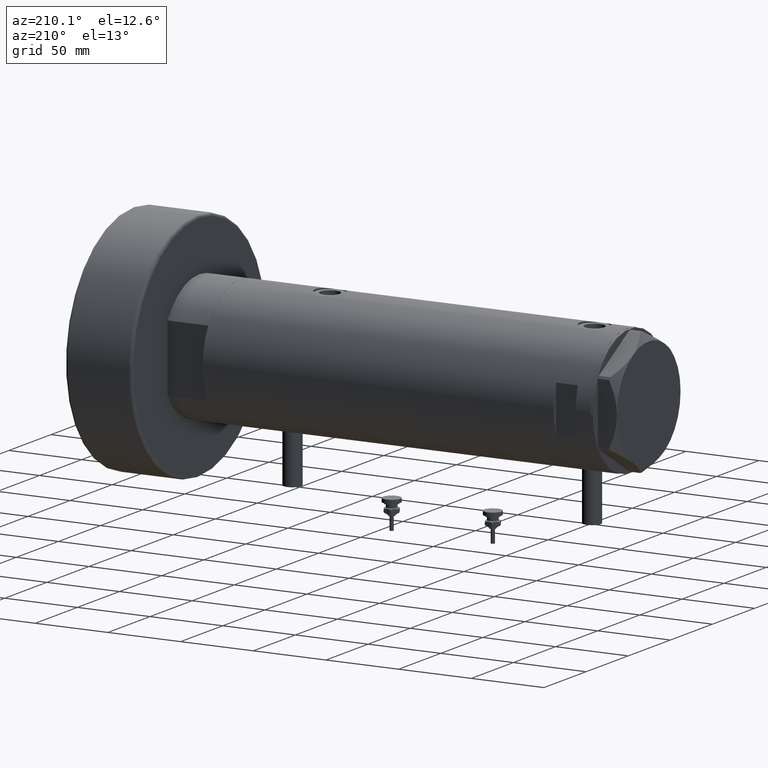
[diagram: clean part render]
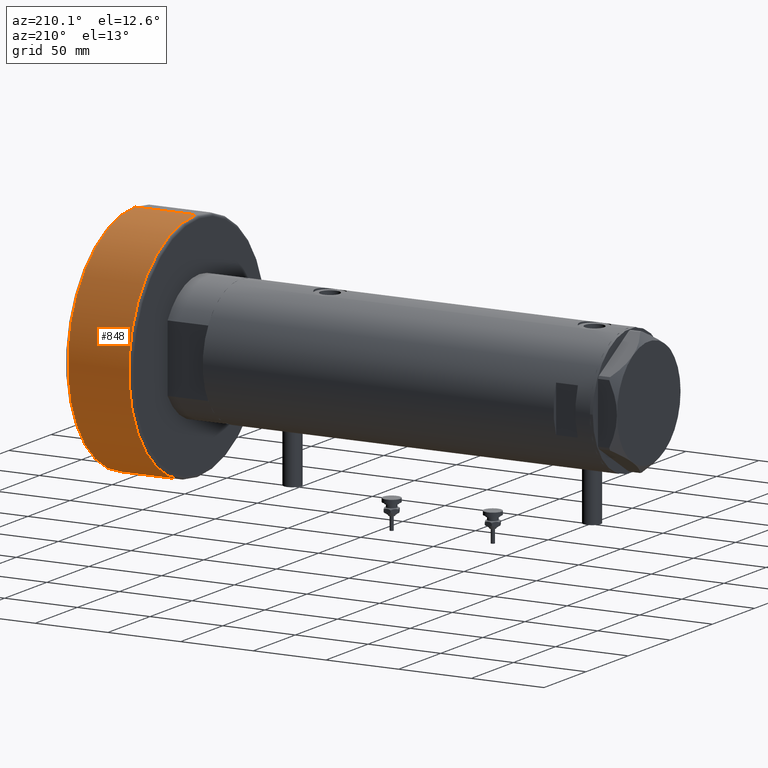
[diagram: same view with one face highlighted and labeled with its STEP entity id]
A machine part, auxiliary view. The second image highlights one B-rep face of the part: STEP entity #848.
In plain terms, the highlighted cylindrical surface (partial cylindrical patch) has radius 80 mm, axis along (-1, -0, 0).
Its self-contained STEP definition (entity closure, byte-faithful):
#287 = CYLINDRICAL_SURFACE ( 'NONE', #289, 80.00000000000000000 ) ;
#289 = AXIS2_PLACEMENT_3D ( 'NONE', #6198, #3276, #4775 ) ;
#376 = CARTESIAN_POINT ( 'NONE',  ( 0.000000000000000000, 0.000000000000000000, 44.00000000000000000 ) ) ;
#444 = DIRECTION ( 'NONE',  ( -0.000000000000000000, -0.000000000000000000, -1.000000000000000000 ) ) ;
#717 = VERTEX_POINT ( 'NONE', #3115 ) ;
#848 = ADVANCED_FACE ( 'NONE', ( #1735 ), #287, .T. ) ;
#950 = VECTOR ( 'NONE', #3771, 1000.000000000000000 ) ;
#1042 = EDGE_CURVE ( 'NONE', #5789, #2592, #3263, .T. ) ;
#1116 = CARTESIAN_POINT ( 'NONE',  ( -80.00000000000000000, 0.000000000000000000, 2.000000000000001776 ) ) ;
#1240 = CARTESIAN_POINT ( 'NONE',  ( -80.00000000000000000, 0.000000000000000000, 46.00000000000000000 ) ) ;
#1281 = ORIENTED_EDGE ( 'NONE', *, *, #2968, .T. ) ;
#1564 = EDGE_CURVE ( 'NONE', #1959, #5789, #4858, .T. ) ;
#1572 = ORIENTED_EDGE ( 'NONE', *, *, #1564, .T. ) ;
#1735 = FACE_OUTER_BOUND ( 'NONE', #4866, .T. ) ;
#1819 = ORIENTED_EDGE ( 'NONE', *, *, #1042, .T. ) ;
#1829 = DIRECTION ( 'NONE',  ( 1.000000000000000000, 0.000000000000000000, 0.000000000000000000 ) ) ;
#1959 = VERTEX_POINT ( 'NONE', #5901 ) ;
#1979 = CARTESIAN_POINT ( 'NONE',  ( 80.00000000000000000, 9.797174393178826052E-15, 46.00000000000000000 ) ) ;
#2106 = CARTESIAN_POINT ( 'NONE',  ( 80.00000000000000000, 9.797174393178826052E-15, 2.000000000000001776 ) ) ;
#2154 = CIRCLE ( 'NONE', #3695, 80.00000000000000000 ) ;
#2333 = DIRECTION ( 'NONE',  ( -0.000000000000000000, -0.000000000000000000, -1.000000000000000000 ) ) ;
#2592 = VERTEX_POINT ( 'NONE', #1116 ) ;
#2649 = ORIENTED_EDGE ( 'NONE', *, *, #5507, .F. ) ;
#2968 = EDGE_CURVE ( 'NONE', #717, #1959, #2154, .T. ) ;
#3115 = CARTESIAN_POINT ( 'NONE',  ( -80.00000000000000000, 0.000000000000000000, 44.00000000000000000 ) ) ;
#3263 = CIRCLE ( 'NONE', #4819, 80.00000000000000000 ) ;
#3276 = DIRECTION ( 'NONE',  ( -0.000000000000000000, -0.000000000000000000, -1.000000000000000000 ) ) ;
#3695 = AXIS2_PLACEMENT_3D ( 'NONE', #376, #2333, #6320 ) ;
#3771 = DIRECTION ( 'NONE',  ( -0.000000000000000000, -0.000000000000000000, -1.000000000000000000 ) ) ;
#4720 = VECTOR ( 'NONE', #444, 1000.000000000000000 ) ;
#4769 = DIRECTION ( 'NONE',  ( 0.000000000000000000, 0.000000000000000000, 1.000000000000000000 ) ) ;
#4775 = DIRECTION ( 'NONE',  ( -1.000000000000000000, 0.000000000000000000, 0.000000000000000000 ) ) ;
#4819 = AXIS2_PLACEMENT_3D ( 'NONE', #6294, #4769, #1829 ) ;
#4858 = LINE ( 'NONE', #1979, #4720 ) ;
#4866 = EDGE_LOOP ( 'NONE', ( #1281, #1572, #1819, #2649 ) ) ;
#5172 = LINE ( 'NONE', #1240, #950 ) ;
#5507 = EDGE_CURVE ( 'NONE', #717, #2592, #5172, .T. ) ;
#5789 = VERTEX_POINT ( 'NONE', #2106 ) ;
#5901 = CARTESIAN_POINT ( 'NONE',  ( 80.00000000000000000, 9.797174393178826052E-15, 44.00000000000000000 ) ) ;
#6198 = CARTESIAN_POINT ( 'NONE',  ( 0.000000000000000000, 0.000000000000000000, 46.00000000000000000 ) ) ;
#6294 = CARTESIAN_POINT ( 'NONE',  ( 0.000000000000000000, 0.000000000000000000, 2.000000000000001776 ) ) ;
#6320 = DIRECTION ( 'NONE',  ( 1.000000000000000000, 0.000000000000000000, 0.000000000000000000 ) ) ;